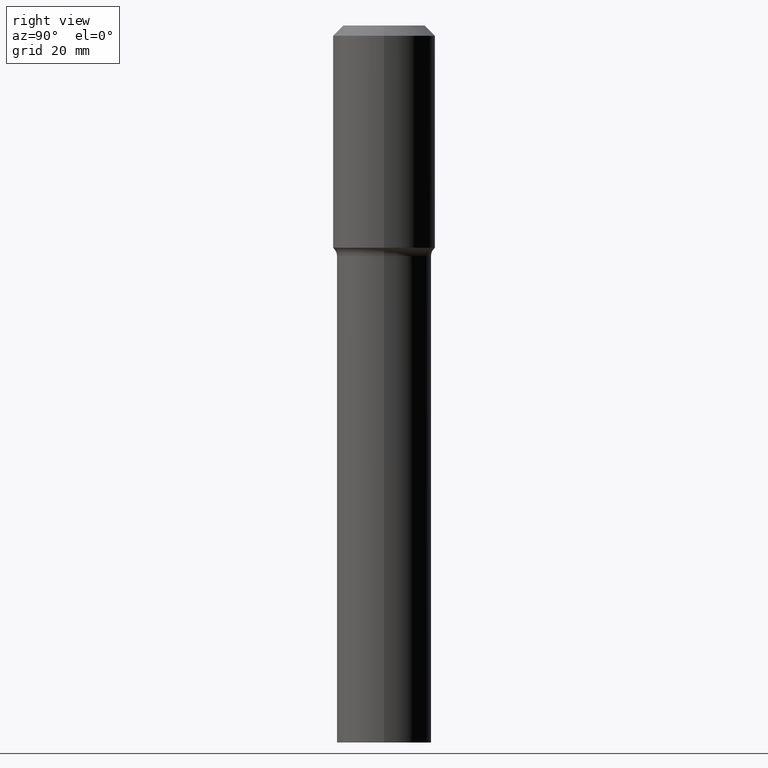
[diagram: clean part render]
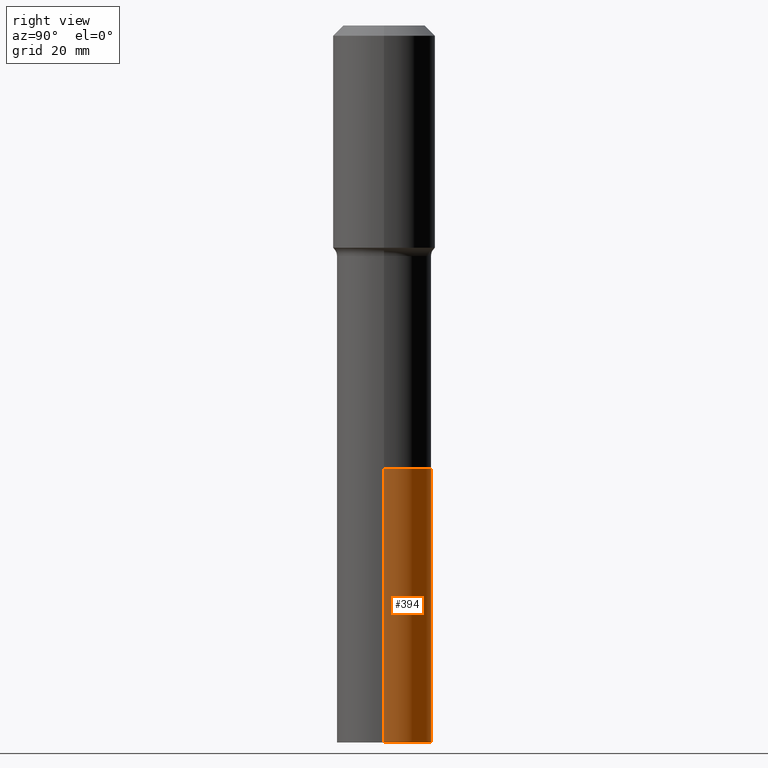
[diagram: same view with one face highlighted and labeled with its STEP entity id]
A machine part, right view. The second image highlights one B-rep face of the part: STEP entity #394.
In plain terms, the highlighted cylindrical surface (partial cylindrical patch) has radius 9.2494 mm, axis along (-0, 0, 1).
Its self-contained STEP definition (entity closure, byte-faithful):
#12 = CARTESIAN_POINT ( 'NONE',  ( 1.347893496593123646E-28, -1.924434684343564878E-14, -5.511800000000000033 ) ) ;
#16 = DIRECTION ( 'NONE',  ( 1.000000000000000000, -6.982962677686263555E-15, 0.000000000000000000 ) ) ;
#44 = ORIENTED_EDGE ( 'NONE', *, *, #330, .F. ) ;
#58 = LINE ( 'NONE', #464, #477 ) ;
#61 = AXIS2_PLACEMENT_3D ( 'NONE', #12, #378, #16 ) ;
#68 = ORIENTED_EDGE ( 'NONE', *, *, #242, .F. ) ;
#108 = CARTESIAN_POINT ( 'NONE',  ( 8.328777660105338684E-29, -1.189128714383198387E-14, -3.405800000000000161 ) ) ;
#113 = AXIS2_PLACEMENT_3D ( 'NONE', #210, #489, #174 ) ;
#174 = DIRECTION ( 'NONE',  ( 1.000000000000000000, -6.982962677686263555E-15, 0.000000000000000000 ) ) ;
#189 = LINE ( 'NONE', #219, #355 ) ;
#191 = FACE_OUTER_BOUND ( 'NONE', #203, .T. ) ;
#196 = VERTEX_POINT ( 'NONE', #445 ) ;
#203 = EDGE_LOOP ( 'NONE', ( #475, #343, #68, #44 ) ) ;
#207 = EDGE_CURVE ( 'NONE', #352, #196, #515, .T. ) ;
#210 = CARTESIAN_POINT ( 'NONE',  ( 8.328777660105338684E-29, -1.189128714383198387E-14, -3.405800000000000161 ) ) ;
#219 = CARTESIAN_POINT ( 'NONE',  ( -0.3641499999999999737, -9.303845771561579230E-15, -3.405800000000000161 ) ) ;
#225 = AXIS2_PLACEMENT_3D ( 'NONE', #108, #416, #275 ) ;
#232 = VERTEX_POINT ( 'NONE', #500 ) ;
#242 = EDGE_CURVE ( 'NONE', #232, #472, #494, .T. ) ;
#275 = DIRECTION ( 'NONE',  ( 1.000000000000000000, -6.982962677686263555E-15, 0.000000000000000000 ) ) ;
#302 = CYLINDRICAL_SURFACE ( 'NONE', #225, 0.3641499999999999737 ) ;
#309 = DIRECTION ( 'NONE',  ( -2.445468806185136877E-29, 3.491481338843145188E-15, 1.000000000000000000 ) ) ;
#318 = EDGE_CURVE ( 'NONE', #196, #472, #189, .T. ) ;
#330 = EDGE_CURVE ( 'NONE', #352, #232, #58, .T. ) ;
#342 = DIRECTION ( 'NONE',  ( -2.445468806185136877E-29, 3.491481338843145188E-15, 1.000000000000000000 ) ) ;
#343 = ORIENTED_EDGE ( 'NONE', *, *, #318, .T. ) ;
#352 = VERTEX_POINT ( 'NONE', #417 ) ;
#355 = VECTOR ( 'NONE', #309, 39.37007874015748143 ) ;
#369 = CARTESIAN_POINT ( 'NONE',  ( -0.3641499999999999737, -1.298037562136341247E-14, -3.405800000000000161 ) ) ;
#378 = DIRECTION ( 'NONE',  ( -2.445468806185136597E-29, 3.491481338843145583E-15, 1.000000000000000000 ) ) ;
#394 = ADVANCED_FACE ( 'NONE', ( #191 ), #302, .T. ) ;
#416 = DIRECTION ( 'NONE',  ( -2.445468806185136597E-29, 3.491481338843145583E-15, 1.000000000000000000 ) ) ;
#417 = CARTESIAN_POINT ( 'NONE',  ( 0.3641499999999999737, -2.178719270251510160E-14, -5.511800000000000033 ) ) ;
#445 = CARTESIAN_POINT ( 'NONE',  ( -0.3641499999999999737, -1.298037562136341247E-14, -5.511800000000000033 ) ) ;
#464 = CARTESIAN_POINT ( 'NONE',  ( 0.3641499999999999737, -1.443413300291143827E-14, -3.405800000000000161 ) ) ;
#472 = VERTEX_POINT ( 'NONE', #369 ) ;
#475 = ORIENTED_EDGE ( 'NONE', *, *, #207, .T. ) ;
#477 = VECTOR ( 'NONE', #342, 39.37007874015748143 ) ;
#489 = DIRECTION ( 'NONE',  ( -2.445468806185136597E-29, 3.491481338843145583E-15, 1.000000000000000000 ) ) ;
#494 = CIRCLE ( 'NONE', #113, 0.3641499999999999737 ) ;
#500 = CARTESIAN_POINT ( 'NONE',  ( 0.3641499999999999737, -1.443413300291143827E-14, -3.405800000000000161 ) ) ;
#515 = CIRCLE ( 'NONE', #61, 0.3641499999999999737 ) ;